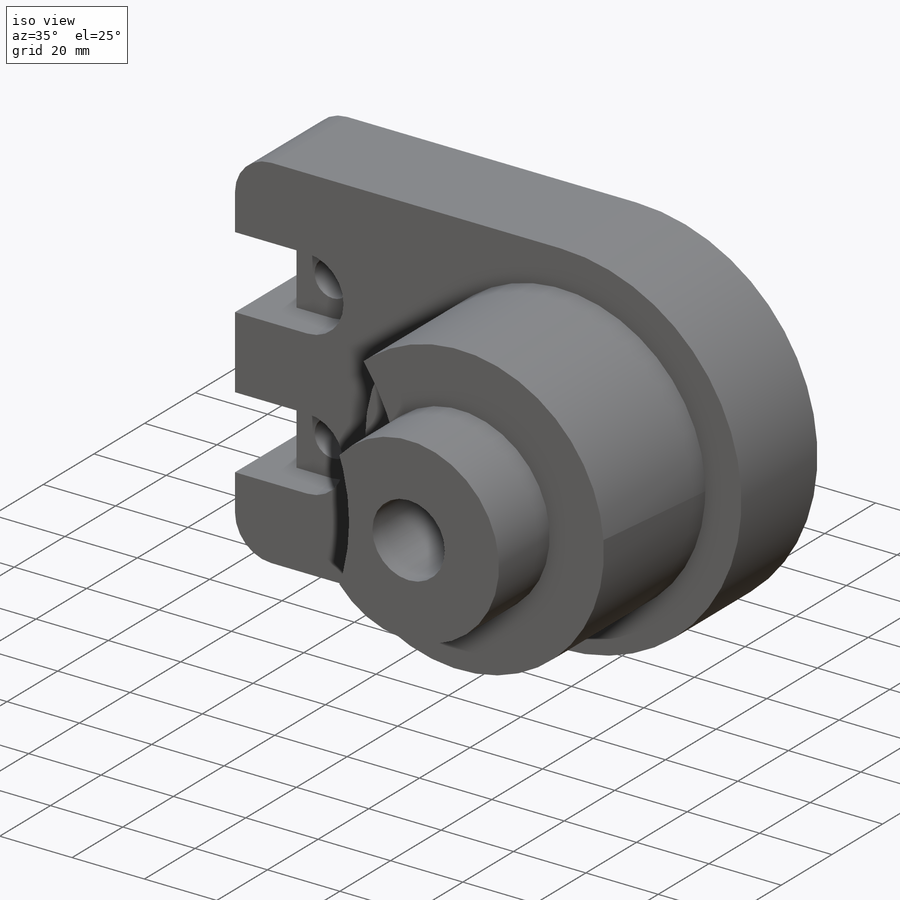
[diagram: iso view]
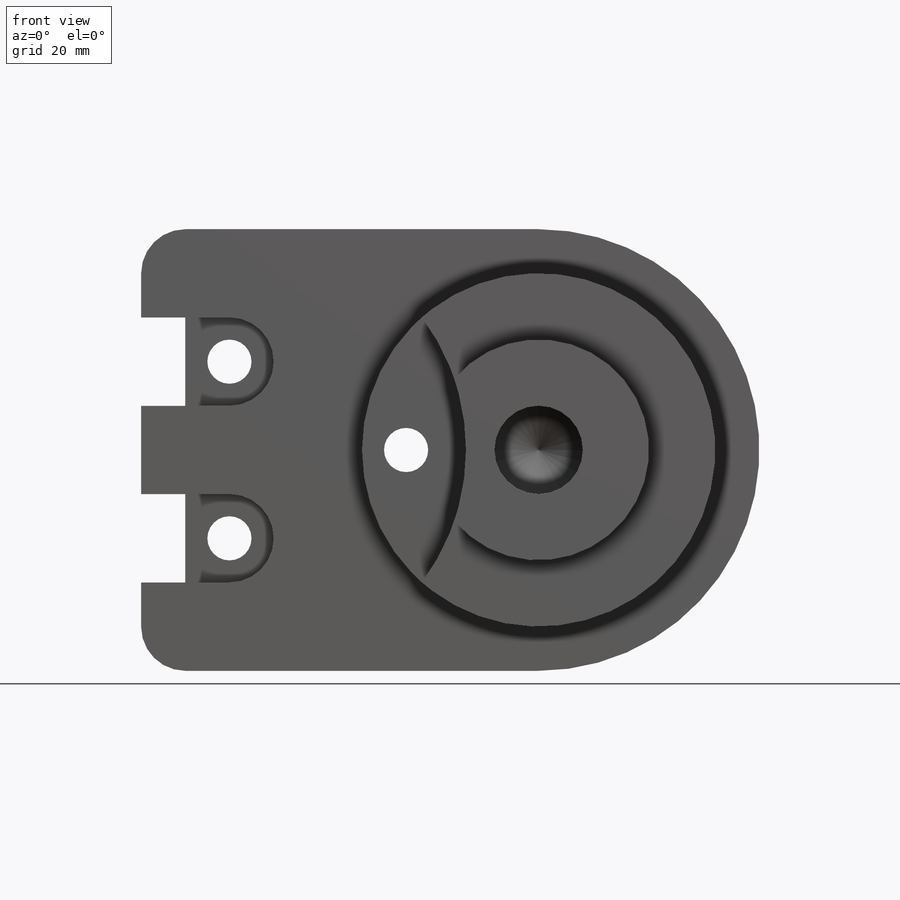
[diagram: front view]
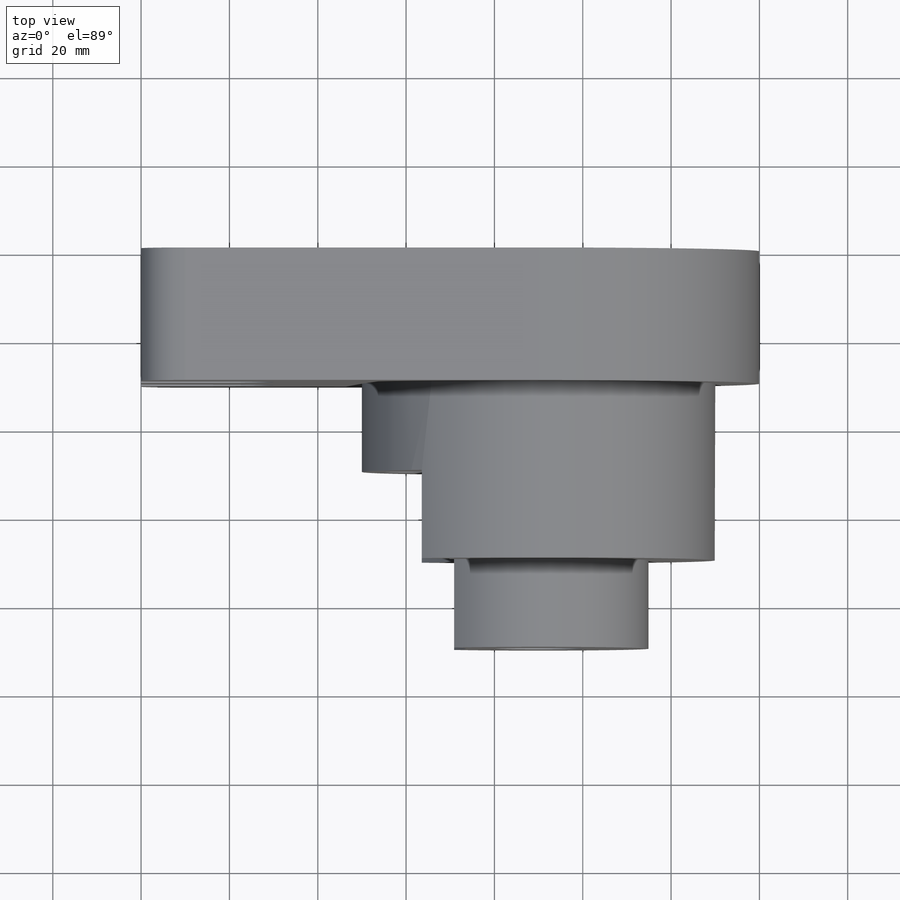
[diagram: top view]
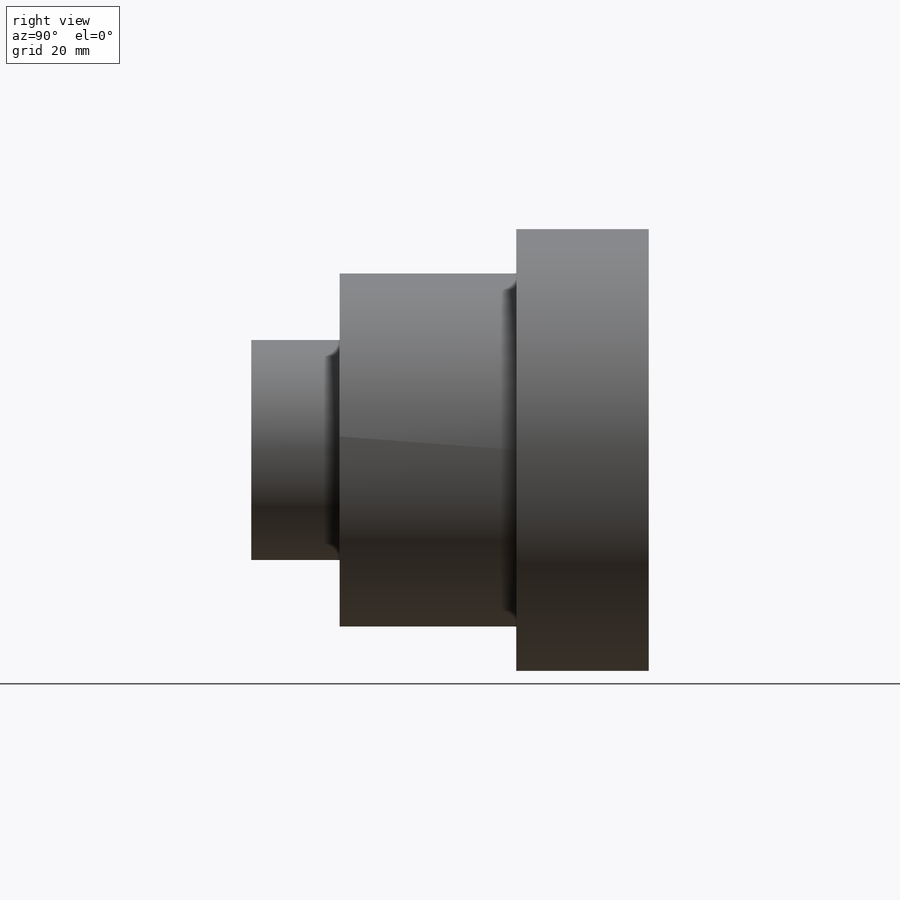
[diagram: right view]
SOLIDWORKS PART (.sldprt)
format: sldprt  version: not decoded by parser v0  size: 384,512 bytes
history: native  units: mm
features: sketch x14, cut_extrude x6, extrude x5, material x1, plane x1, hole x1 (+13 scaffold rows collapsed)
feature tree (41):
  scaffold x13  (default folders/planes/origin — collapsed)
  material  "Material <not specified>"
  sketch  "Sketch1"  dims[D1=50.0mm D2=100.0mm D3=90.0mm D4=90.0mm]
  extrude  "Boss-Extrude1"  Depth=30mm
  sketch  "Sketch2"  dims[D1=10.0mm D2=10.0mm D3=10.0mm D4=10.0mm D5=10.0mm D6=10.0mm D7=10.0mm D8=10.0mm D9=20.0mm D10=10.0mm D11=10.0mm D12=20.0mm D13=10.0mm D14=20.0mm D15=10.0mm]
  cut_extrude  "Cut-Extrude1"  Depth=30mm
  sketch  "Sketch3"  dims[D1=80.0mm]
  extrude  "Boss-Extrude2"  Depth=40mm
  sketch  "Sketch4"  dims[D1=50.0mm D2=50.0mm D3=0.0mm]
  extrude  "Boss-Extrude3"  Depth=20mm
  sketch  "Sketch5"  dims[D3=10.0mm D1=10.0mm D2=10.0mm]
  cut_extrude  "Cut-Extrude2"  Depth=42mm
  sketch  "Sketch6"  dims[D3=10.0mm D1=10.0mm D2=10.0mm]
  cut_extrude  "Cut-Extrude3"  Depth=42mm
  plane  "Plane1"  Offset=10mm
  sketch  "Sketch7"  dims[D4=10.0mm D1=20.0mm D2=10.0mm D3=10.0mm D5=10.0mm D6=0.0mm]
  extrude  "Boss-Extrude4"  Depth=10mm
  sketch  "Sketch8"  dims[D4=10.0mm D1=20.0mm D2=10.0mm D3=10.0mm D5=10.0mm D6=0.0mm]
  extrude  "Boss-Extrude5"  Depth=10mm
  sketch  "Sketch9"  dims[D1=10.0mm D2=10.0mm]
  cut_extrude  "Cut-Extrude4"  Depth=10mm
  sketch  "Sketch10"  dims[c1.D4=~46.738931mm c1.D5=40.0mm c1.D6=80.0mm c2.D4=~52.309973mm c2.D3=50.0mm c2.D1=10.0mm c2.D2=30.0mm c3.D3=30.0mm c3.D4=~23.000002mm c3.D5=30.0mm c3.D6=~22.979931mm c4.D6=~9.457514mm c4.D4=~42.85246mm c4.D1=60.0mm c4.D2=~63.542487mm c5.D4=30.0mm c5.D6=30.0mm]
  cut_extrude  "Cut-Extrude5"  Depth=20mm
  sketch  "Sketch11"  dims[D1=10.0mm D2=50.0mm D3=60.0mm]
  cut_extrude  "Cut-Extrude6"  Depth=50mm
  sketch  "Sketch14"
  hole  "Ø20.0mm Dowel Hole1"  Diameter=20mm Depth=30mm
  sketch  "3DSketch2"
  sketch  "Sketch15"  dims[hole-wizard template sketch: 46 standard entries collapsed; hole parameters kept: c15.Hole Dia.=20.0mm c15.Hole Depth=30.0mm c15.D3=~14.816244mm c15.Drill Angle=118.0deg]
decode coverage: 24 of 26 modeling features carry decoded parameters
note: ~ marks probable driven/reference dimensions
note: suppression state not decoded; provenance and decode notes live in map.json
